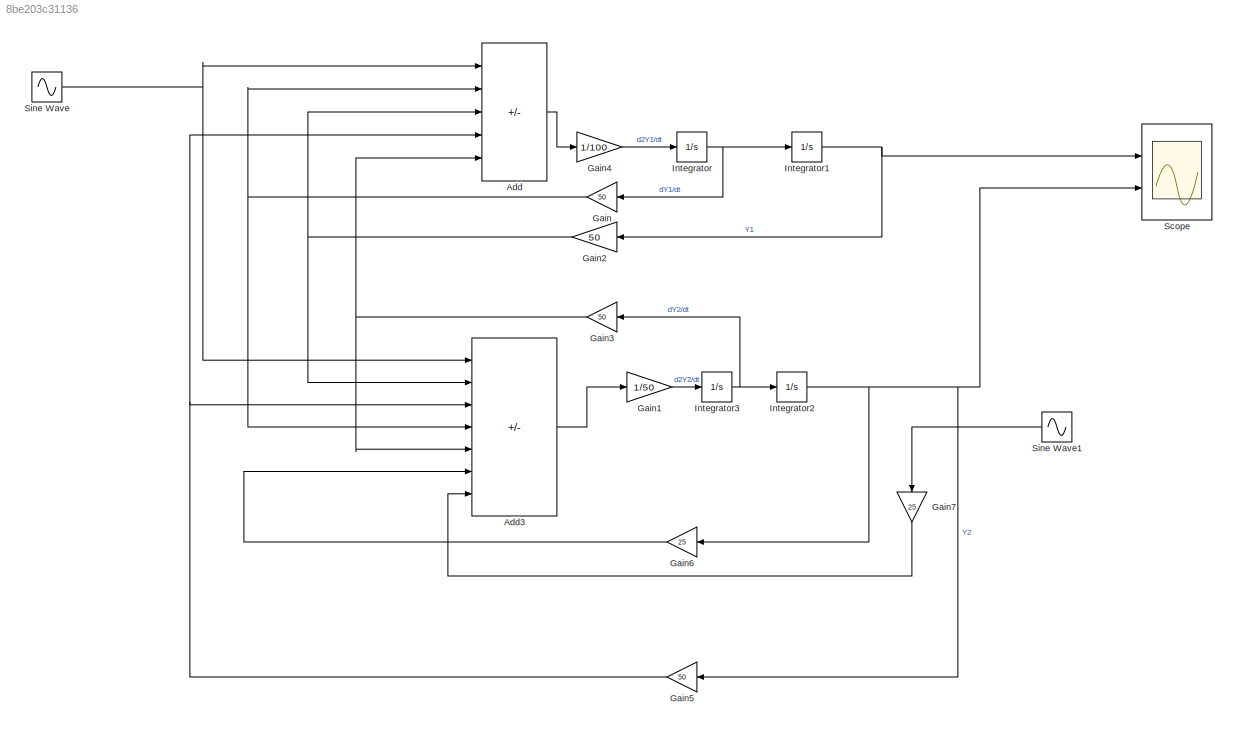
MODEL slx_8be203c31136
KIND model
CONFIG AbsTol = auto
CONFIG EnableMultiTasking = off
CONFIG FixedStep = auto
CONFIG MaxStep = auto
CONFIG MinStep = auto
CONFIG RelTol = 1e-3
CONFIG SampleTimeConstraint = Unconstrained
CONFIG SolverName = VariableStepAuto
CONFIG StartTime = 0.0
CONFIG StopTime = 500
BLOCK [Sum] Add
  IconShape = rectangular
  Inputs = +--++
  Ports = [5, 1]
BLOCK [Sum] Add3
  IconShape = rectangular
  Inputs = -+-+--+
  Ports = [7, 1]
BLOCK [Gain] Gain
  Gain = 50
  NameLocation = top
BLOCK [Gain] Gain1
  Gain = 1/50
BLOCK [Gain] Gain2
  Gain = 50
BLOCK [Gain] Gain3
  Gain = 50
BLOCK [Gain] Gain4
  Gain = 1/100
BLOCK [Gain] Gain5
  Gain = 50
BLOCK [Gain] Gain6
  Gain = 25
BLOCK [Gain] Gain7
  Gain = 25
  NameLocation = right
BLOCK [Integrator] Integrator
  Ports = [1, 1]
BLOCK [Integrator] Integrator1
  Ports = [1, 1]
BLOCK [Integrator] Integrator2
  Ports = [1, 1]
BLOCK [Integrator] Integrator3
  Ports = [1, 1]
BLOCK [Scope] Scope
  Floating = off
  NumInputPorts = 2
  Ports = [2]
  ScopeSpecificationString = Simulink.scopes.TimeScopeBlockCfg('CurrentConfiguration', extmgr.ConfigurationSet(extmgr.Configuration('Core','General UI',true),extmgr.Configuration('Core','Source UI',true),extmgr.Configuration('Sources','WiredSimulink',true),extmgr.Configuration('Visuals','Time Domain',true,'SerializedDisplays',{struct('MinYLimReal','-0.08805','MaxYLimReal','0.19384','YLabelReal','','MinYLimMag','0.00000','MaxY...<+2067ch>
BLOCK [Sin] Sine Wave
  Amplitude = 2
  Frequency = 10
  Ports = [0, 1]
  SampleTime = 0
BLOCK [Sin] Sine Wave1
  Amplitude = 2
  Frequency = 10
  Ports = [0, 1]
  SampleTime = 0
LINE Add3:1 -> Gain1:1
LINE Add:1 -> Gain4:1
LINE Gain1:1 -> Integrator3:1
NET Gain2:1 -> Add3:2, Add:3
NET Gain3:1 -> Add3:5, Add:5
LINE Gain4:1 -> Integrator:1
NET Gain5:1 -> Add3:3, Add:4
LINE Gain6:1 -> Add3:6
LINE Gain7:1 -> Add3:7
NET Gain:1 -> Add3:4, Add:2
NET Integrator1:1 -> Gain2:1, Scope:1
NET Integrator2:1 -> Gain5:1, Gain6:1, Scope:2
NET Integrator3:1 -> Gain3:1, Integrator2:1
NET Integrator:1 -> Gain:1, Integrator1:1
LINE Sine Wave1:1 -> Gain7:1
NET Sine Wave:1 -> Add3:1, Add:1
note: NET lines group one-source signal fan-out (src -> all destinations, sorted); 1:1 wires keep LINE
